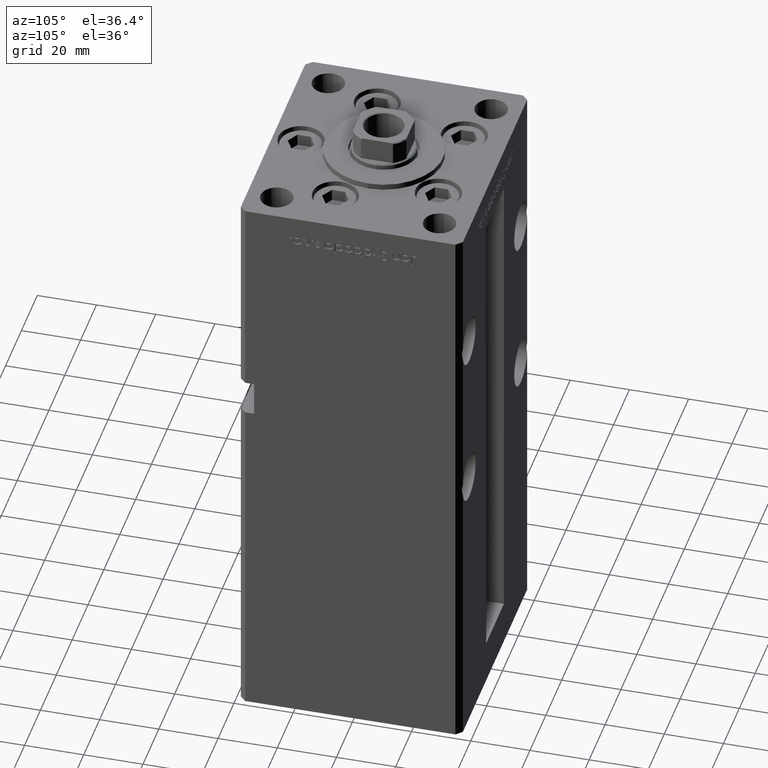
[diagram: clean part render]
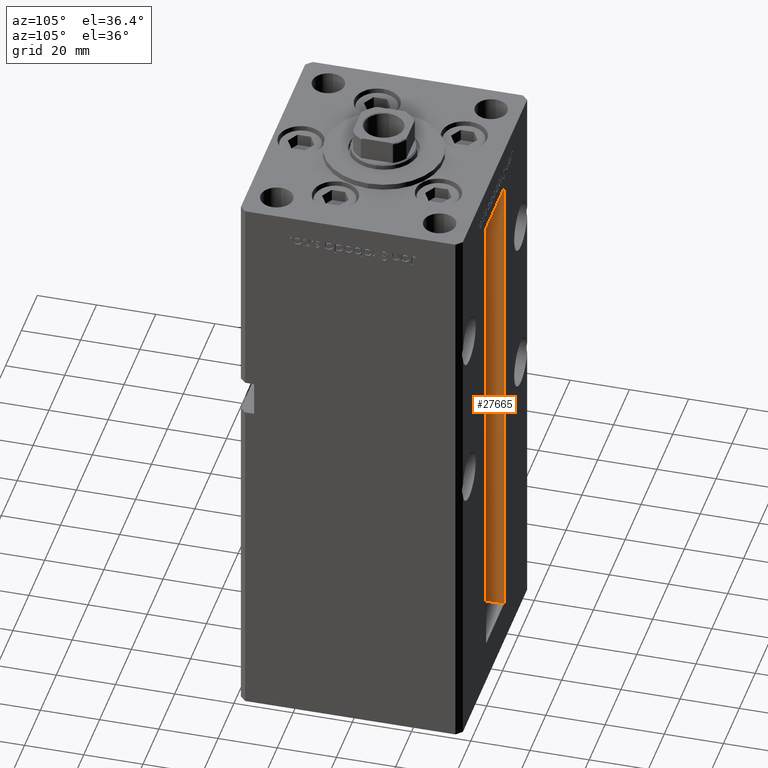
[diagram: same view with one face highlighted and labeled with its STEP entity id]
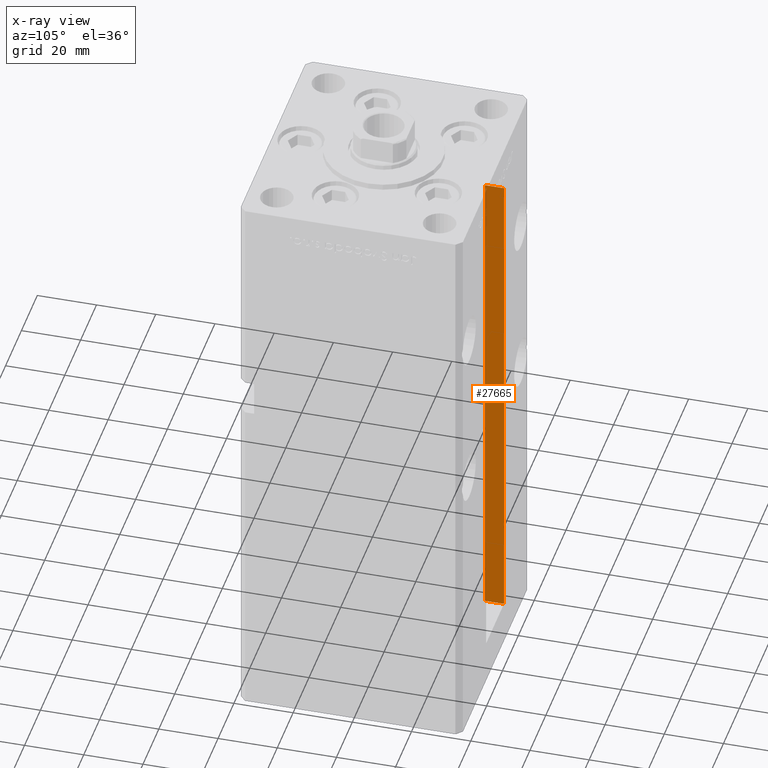
[diagram: x-ray of the same camera — body ghosted, the highlighted face saturated]
A machine part, auxiliary view. The second image highlights one B-rep face of the part: STEP entity #27665.
The next image is the same camera in x-ray: the body ghosted, the highlighted face saturated — about 6% of this face is hidden behind the body in this view.
In plain terms, the highlighted planar face has unit normal (-1, 0, 0).
Its self-contained STEP definition (entity closure, byte-faithful):
#13 = LINE ( 'NONE', #12114, #31404 ) ;
#3925 = LINE ( 'NONE', #40499, #16821 ) ;
#6601 = LINE ( 'NONE', #22735, #43287 ) ;
#8189 = VERTEX_POINT ( 'NONE', #32464 ) ;
#8354 = DIRECTION ( 'NONE',  ( -0.000000000000000000, -0.000000000000000000, 1.000000000000000000 ) ) ;
#9764 = CARTESIAN_POINT ( 'NONE',  ( -11.24999999999999822, 37.50000000000000000, 0.000000000000000000 ) ) ;
#11919 = AXIS2_PLACEMENT_3D ( 'NONE', #47909, #30974, #23405 ) ;
#12114 = CARTESIAN_POINT ( 'NONE',  ( -11.24999999999999822, 37.50000000000000000, 0.000000000000000000 ) ) ;
#14300 = EDGE_CURVE ( 'NONE', #8189, #27206, #40478, .T. ) ;
#14837 = FACE_OUTER_BOUND ( 'NONE', #19521, .T. ) ;
#16304 = DIRECTION ( 'NONE',  ( -0.000000000000000000, -1.000000000000000000, -0.000000000000000000 ) ) ;
#16821 = VECTOR ( 'NONE', #16304, 1000.000000000000000 ) ;
#17501 = EDGE_CURVE ( 'NONE', #37485, #49323, #3925, .T. ) ;
#19521 = EDGE_LOOP ( 'NONE', ( #32341, #27712, #44546, #52105 ) ) ;
#19633 = PLANE ( 'NONE',  #11919 ) ;
#21875 = EDGE_CURVE ( 'NONE', #37485, #27206, #13, .T. ) ;
#22735 = CARTESIAN_POINT ( 'NONE',  ( -11.24999999999999822, 31.00000000000000000, 0.000000000000000000 ) ) ;
#23405 = DIRECTION ( 'NONE',  ( 0.000000000000000000, 0.000000000000000000, 1.000000000000000000 ) ) ;
#23551 = VECTOR ( 'NONE', #28097, 1000.000000000000000 ) ;
#27206 = VERTEX_POINT ( 'NONE', #38687 ) ;
#27665 = ADVANCED_FACE ( 'NONE', ( #14837 ), #19633, .F. ) ;
#27712 = ORIENTED_EDGE ( 'NONE', *, *, #17501, .F. ) ;
#28097 = DIRECTION ( 'NONE',  ( 0.000000000000000000, 1.000000000000000000, 0.000000000000000000 ) ) ;
#30852 = CARTESIAN_POINT ( 'NONE',  ( -11.24999999999999822, 31.00000000000000000, 0.000000000000000000 ) ) ;
#30974 = DIRECTION ( 'NONE',  ( -1.000000000000000000, 0.000000000000000000, 0.000000000000000000 ) ) ;
#31404 = VECTOR ( 'NONE', #8354, 1000.000000000000000 ) ;
#32341 = ORIENTED_EDGE ( 'NONE', *, *, #46082, .F. ) ;
#32464 = CARTESIAN_POINT ( 'NONE',  ( -11.24999999999999822, 31.00000000000000000, 168.5000000000000000 ) ) ;
#37485 = VERTEX_POINT ( 'NONE', #9764 ) ;
#38079 = DIRECTION ( 'NONE',  ( -0.000000000000000000, -0.000000000000000000, 1.000000000000000000 ) ) ;
#38687 = CARTESIAN_POINT ( 'NONE',  ( -11.24999999999999822, 37.50000000000000000, 168.5000000000000000 ) ) ;
#40478 = LINE ( 'NONE', #41283, #23551 ) ;
#40499 = CARTESIAN_POINT ( 'NONE',  ( -11.24999999999999822, 31.00000000000000000, 0.000000000000000000 ) ) ;
#41283 = CARTESIAN_POINT ( 'NONE',  ( -11.24999999999999822, 0.000000000000000000, 168.5000000000000000 ) ) ;
#43287 = VECTOR ( 'NONE', #38079, 1000.000000000000000 ) ;
#44546 = ORIENTED_EDGE ( 'NONE', *, *, #21875, .T. ) ;
#46082 = EDGE_CURVE ( 'NONE', #49323, #8189, #6601, .T. ) ;
#47909 = CARTESIAN_POINT ( 'NONE',  ( -11.24999999999999822, 31.00000000000000000, 0.000000000000000000 ) ) ;
#49323 = VERTEX_POINT ( 'NONE', #30852 ) ;
#52105 = ORIENTED_EDGE ( 'NONE', *, *, #14300, .F. ) ;